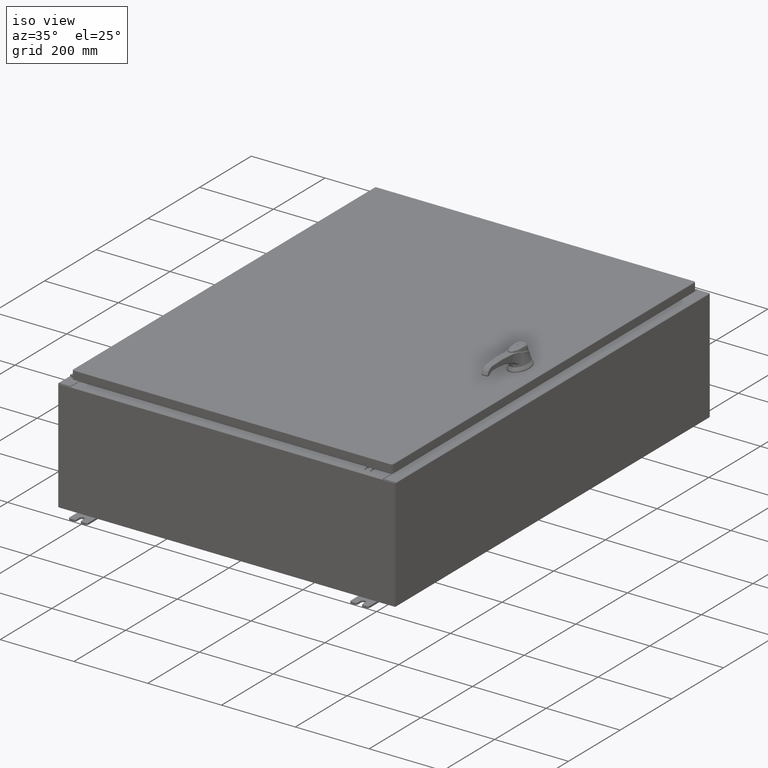
[diagram: clean part render]
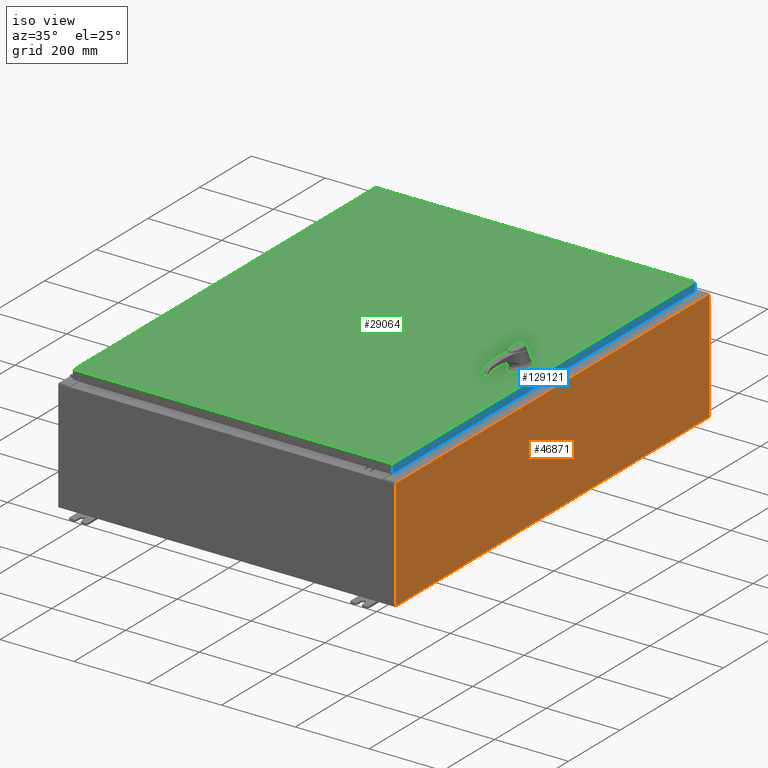
[diagram: same view with three faces highlighted in distinct colors, each labeled with its STEP entity id]
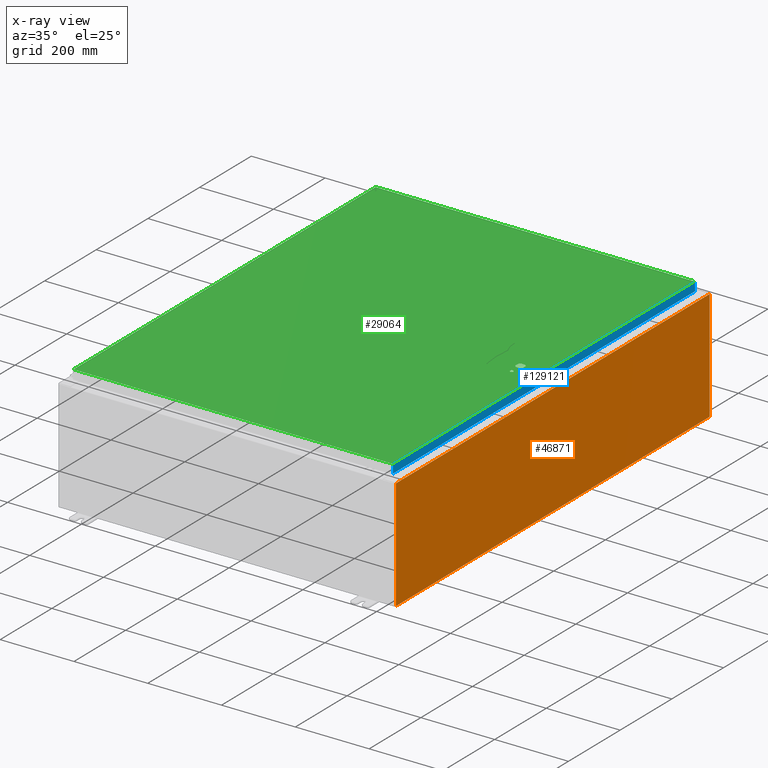
[diagram: x-ray of the same camera — body ghosted, the three highlighted faces saturated]
A machine part, iso view with three faces highlighted in distinct colors.
The next image is the same camera in x-ray (body ghosted, the three faces saturated) — at least one of them is partly hidden behind the body in this view.
Their STEP definitions:

[orange] entity #46871 — the highlighted planar face has unit normal (-1, 0, 0).
#1616 = EDGE_CURVE ( 'NONE', #17032, #116725, #120966, .T. ) ;
#11651 = CARTESIAN_POINT ( 'NONE',  ( 18.00000000000003900, 23.92529999999998900, 11.83760000000000200 ) ) ;
#12940 = CARTESIAN_POINT ( 'NONE',  ( 17.99999999999999600, 23.92529999999998900, -6.293710784286996200E-014 ) ) ;
#17032 = VERTEX_POINT ( 'NONE', #26795 ) ;
#25118 = VERTEX_POINT ( 'NONE', #116695 ) ;
#26795 = CARTESIAN_POINT ( 'NONE',  ( 18.00000000000003900, -23.92529999999998900, 11.83760000000000200 ) ) ;
#28885 = LINE ( 'NONE', #128133, #111673 ) ;
#35739 = ORIENTED_EDGE ( 'NONE', *, *, #40190, .T. ) ;
#40190 = EDGE_CURVE ( 'NONE', #60529, #25118, #54267, .T. ) ;
#43577 = EDGE_CURVE ( 'NONE', #25118, #17032, #126953, .T. ) ;
#46871 = ADVANCED_FACE ( 'NONE', ( #116472 ), #96043, .F. ) ;
#46961 = CARTESIAN_POINT ( 'NONE',  ( 17.99999999999999600, -23.92529999999998900, 0.01299999999999897800 ) ) ;
#46983 = ORIENTED_EDGE ( 'NONE', *, *, #43577, .T. ) ;
#47941 = ORIENTED_EDGE ( 'NONE', *, *, #86748, .F. ) ;
#51321 = CARTESIAN_POINT ( 'NONE',  ( 17.99999999999999600, 23.92529999999998600, 0.01300000000000203200 ) ) ;
#54267 = LINE ( 'NONE', #12940, #57485 ) ;
#54723 = DIRECTION ( 'NONE',  ( -1.000000000000000000, 0.0000000000000000000, 3.482016343714355100E-015 ) ) ;
#57485 = VECTOR ( 'NONE', #116737, 39.37007874015748100 ) ;
#60529 = VERTEX_POINT ( 'NONE', #51321 ) ;
#65984 = DIRECTION ( 'NONE',  ( -1.590339826456887700E-031, -1.000000000000000000, -4.567295697298285000E-017 ) ) ;
#86748 = EDGE_CURVE ( 'NONE', #60529, #116725, #28885, .T. ) ;
#93439 = VECTOR ( 'NONE', #102812, 39.37007874015748100 ) ;
#96043 = PLANE ( 'NONE',  #119093 ) ;
#99313 = VECTOR ( 'NONE', #105013, 39.37007874015748100 ) ;
#100063 = EDGE_LOOP ( 'NONE', ( #46983, #121100, #47941, #35739 ) ) ;
#102812 = DIRECTION ( 'NONE',  ( -3.482016343714355500E-015, 0.0000000000000000000, -1.000000000000000000 ) ) ;
#105013 = DIRECTION ( 'NONE',  ( -0.0000000000000000000, -1.000000000000000000, -0.0000000000000000000 ) ) ;
#111673 = VECTOR ( 'NONE', #65984, 39.37007874015748100 ) ;
#116472 = FACE_OUTER_BOUND ( 'NONE', #100063, .T. ) ;
#116695 = CARTESIAN_POINT ( 'NONE',  ( 18.00000000000003900, 23.92529999999998600, 11.83760000000000200 ) ) ;
#116725 = VERTEX_POINT ( 'NONE', #46961 ) ;
#116737 = DIRECTION ( 'NONE',  ( 3.482016343714355500E-015, 0.0000000000000000000, 1.000000000000000000 ) ) ;
#116870 = CARTESIAN_POINT ( 'NONE',  ( 17.99999999999999600, 0.0000000000000000000, -6.293710784286996200E-014 ) ) ;
#119093 = AXIS2_PLACEMENT_3D ( 'NONE', #116870, #54723, #127322 ) ;
#120966 = LINE ( 'NONE', #123672, #93439 ) ;
#121100 = ORIENTED_EDGE ( 'NONE', *, *, #1616, .T. ) ;
#123672 = CARTESIAN_POINT ( 'NONE',  ( 17.99999999999999600, -23.92529999999998900, -6.293710784286996200E-014 ) ) ;
#126953 = LINE ( 'NONE', #11651, #99313 ) ;
#127322 = DIRECTION ( 'NONE',  ( 3.482016343714355100E-015, 0.0000000000000000000, 1.000000000000000000 ) ) ;
#128133 = CARTESIAN_POINT ( 'NONE',  ( 17.99999999999999600, -23.92529999999998900, 0.01299999999999984700 ) ) ;

[blue] entity #129121 — the highlighted planar face has unit normal (1, 0, 0).
#140 = ORIENTED_EDGE ( 'NONE', *, *, #812, .T. ) ;
#812 = EDGE_CURVE ( 'NONE', #10887, #98666, #20368, .T. ) ;
#5435 = VECTOR ( 'NONE', #29473, 39.37007874015748100 ) ;
#6855 = EDGE_CURVE ( 'NONE', #10887, #113519, #99299, .T. ) ;
#10887 = VERTEX_POINT ( 'NONE', #28990 ) ;
#20368 = LINE ( 'NONE', #87906, #75522 ) ;
#23919 = EDGE_CURVE ( 'NONE', #98666, #79311, #120025, .T. ) ;
#25027 = CARTESIAN_POINT ( 'NONE',  ( 17.07800000000000300, -23.09400000000000100, -0.9376999999999997600 ) ) ;
#28990 = CARTESIAN_POINT ( 'NONE',  ( 17.07800000000000300, 23.00515786437628000, -0.9376999999999997600 ) ) ;
#29473 = DIRECTION ( 'NONE',  ( -2.532419924601866100E-015, -6.982962677686265900E-015, 1.000000000000000000 ) ) ;
#56268 = DIRECTION ( 'NONE',  ( 0.0000000000000000000, -1.000000000000000000, 0.0000000000000000000 ) ) ;
#57563 = PLANE ( 'NONE',  #115372 ) ;
#58018 = CARTESIAN_POINT ( 'NONE',  ( 17.07799999999999900, 0.0000000000000000000, 4.350948112836224800E-014 ) ) ;
#59950 = CARTESIAN_POINT ( 'NONE',  ( 17.07799999999999900, 0.0000000000000000000, -0.08770000000000008300 ) ) ;
#65529 = ORIENTED_EDGE ( 'NONE', *, *, #23919, .T. ) ;
#68429 = DIRECTION ( 'NONE',  ( 2.532419924601866100E-015, 0.0000000000000000000, -1.000000000000000000 ) ) ;
#71700 = VECTOR ( 'NONE', #56268, 39.37007874015748100 ) ;
#75522 = VECTOR ( 'NONE', #120037, 39.37007874015748100 ) ;
#76386 = CARTESIAN_POINT ( 'NONE',  ( 17.07799999999999900, 23.00515786437627200, -0.08770000000000008300 ) ) ;
#79311 = VERTEX_POINT ( 'NONE', #127663 ) ;
#80847 = DIRECTION ( 'NONE',  ( 0.0000000000000000000, -1.000000000000000000, 0.0000000000000000000 ) ) ;
#82962 = EDGE_LOOP ( 'NONE', ( #113690, #130382, #140, #65529 ) ) ;
#87906 = CARTESIAN_POINT ( 'NONE',  ( 17.07799999999999900, 23.00515786437627600, 2.041536398895824600E-013 ) ) ;
#92458 = VECTOR ( 'NONE', #80847, 39.37007874015748100 ) ;
#92611 = EDGE_CURVE ( 'NONE', #113519, #79311, #115784, .T. ) ;
#98666 = VERTEX_POINT ( 'NONE', #76386 ) ;
#99299 = LINE ( 'NONE', #25027, #71700 ) ;
#113519 = VERTEX_POINT ( 'NONE', #133818 ) ;
#113690 = ORIENTED_EDGE ( 'NONE', *, *, #92611, .F. ) ;
#115372 = AXIS2_PLACEMENT_3D ( 'NONE', #58018, #130563, #68429 ) ;
#115784 = LINE ( 'NONE', #133705, #5435 ) ;
#120025 = LINE ( 'NONE', #59950, #92458 ) ;
#120037 = DIRECTION ( 'NONE',  ( -2.532419924601866100E-015, -6.982962677686265900E-015, 1.000000000000000000 ) ) ;
#121695 = FACE_OUTER_BOUND ( 'NONE', #82962, .T. ) ;
#127663 = CARTESIAN_POINT ( 'NONE',  ( 17.07799999999999900, -23.00515786437626900, -0.08770000000000008300 ) ) ;
#129121 = ADVANCED_FACE ( 'NONE', ( #121695 ), #57563, .T. ) ;
#130382 = ORIENTED_EDGE ( 'NONE', *, *, #6855, .F. ) ;
#130563 = DIRECTION ( 'NONE',  ( 1.000000000000000000, 0.0000000000000000000, 2.532419924601866100E-015 ) ) ;
#133705 = CARTESIAN_POINT ( 'NONE',  ( 17.07799999999999900, -23.00515786437626900, -0.07469999999999980800 ) ) ;
#133818 = CARTESIAN_POINT ( 'NONE',  ( 17.07800000000000300, -23.00515786437626200, -0.9376999999999997600 ) ) ;

[green] entity #29064 — the highlighted planar face has unit normal (0, 0, -1).
#1059 = VERTEX_POINT ( 'NONE', #6441 ) ;
#1452 = VERTEX_POINT ( 'NONE', #112198 ) ;
#1599 = ORIENTED_EDGE ( 'NONE', *, *, #79487, .F. ) ;
#3014 = VERTEX_POINT ( 'NONE', #13483 ) ;
#3662 = DIRECTION ( 'NONE',  ( -0.0000000000000000000, 0.0000000000000000000, 1.000000000000000000 ) ) ;
#3948 = EDGE_CURVE ( 'NONE', #100756, #3014, #29806, .T. ) ;
#6441 = CARTESIAN_POINT ( 'NONE',  ( 14.37777262924369000, -0.4029999999999252000, 0.0000000000000000000 ) ) ;
#9037 = CARTESIAN_POINT ( 'NONE',  ( 14.57799999999999900, -1.338000000000000100, 0.0000000000000000000 ) ) ;
#10318 = AXIS2_PLACEMENT_3D ( 'NONE', #65749, #3662, #76243 ) ;
#11972 = EDGE_CURVE ( 'NONE', #15686, #56895, #12584, .T. ) ;
#12584 = LINE ( 'NONE', #23325, #119587 ) ;
#12827 = CARTESIAN_POINT ( 'NONE',  ( 14.57799999999999900, 0.0000000000000000000, 0.0000000000000000000 ) ) ;
#13262 = VECTOR ( 'NONE', #35687, 39.37007874015748100 ) ;
#13483 = CARTESIAN_POINT ( 'NONE',  ( -16.99029999999999800, -23.00630000000000300, 1.946441695485787500E-015 ) ) ;
#13830 = ORIENTED_EDGE ( 'NONE', *, *, #62180, .T. ) ;
#15658 = LINE ( 'NONE', #99883, #122740 ) ;
#15686 = VERTEX_POINT ( 'NONE', #100871 ) ;
#16999 = LINE ( 'NONE', #25412, #120781 ) ;
#17496 = EDGE_CURVE ( 'NONE', #112810, #57061, #48020, .T. ) ;
#19332 = EDGE_CURVE ( 'NONE', #53659, #100756, #16999, .T. ) ;
#19472 = DIRECTION ( 'NONE',  ( 1.000000000000000000, 0.0000000000000000000, 0.0000000000000000000 ) ) ;
#19623 = VECTOR ( 'NONE', #112167, 39.37007874015748100 ) ;
#20201 = ORIENTED_EDGE ( 'NONE', *, *, #17496, .F. ) ;
#22743 = VECTOR ( 'NONE', #45516, 39.37007874015748100 ) ;
#23237 = DIRECTION ( 'NONE',  ( 1.000000000000000000, 0.0000000000000000000, 0.0000000000000000000 ) ) ;
#23325 = CARTESIAN_POINT ( 'NONE',  ( 0.0000000000000000000, 0.4029999999999252000, 0.0000000000000000000 ) ) ;
#23753 = ORIENTED_EDGE ( 'NONE', *, *, #25377, .F. ) ;
#23811 = VERTEX_POINT ( 'NONE', #68560 ) ;
#24110 = FACE_BOUND ( 'NONE', #65411, .T. ) ;
#24943 = VERTEX_POINT ( 'NONE', #88246 ) ;
#25233 = CIRCLE ( 'NONE', #64374, 0.1715000000000011500 ) ;
#25377 = EDGE_CURVE ( 'NONE', #26383, #15686, #84764, .T. ) ;
#25412 = CARTESIAN_POINT ( 'NONE',  ( 16.99029999999999800, 23.00630000000001000, 1.946441695485787500E-015 ) ) ;
#26383 = VERTEX_POINT ( 'NONE', #117297 ) ;
#29064 = ADVANCED_FACE ( 'NONE', ( #24110, #134398, #76047 ), #112938, .F. ) ;
#29806 = LINE ( 'NONE', #71504, #115827 ) ;
#30298 = CARTESIAN_POINT ( 'NONE',  ( 14.98099999999992900, -0.2002273707563079800, 0.0000000000000000000 ) ) ;
#30352 = DIRECTION ( 'NONE',  ( 1.000000000000000000, -0.0000000000000000000, -0.0000000000000000000 ) ) ;
#30406 = DIRECTION ( 'NONE',  ( -1.000000000000000000, 0.0000000000000000000, -0.0000000000000000000 ) ) ;
#31755 = AXIS2_PLACEMENT_3D ( 'NONE', #111184, #48993, #121570 ) ;
#35494 = AXIS2_PLACEMENT_3D ( 'NONE', #12827, #85377, #23237 ) ;
#35687 = DIRECTION ( 'NONE',  ( 0.0000000000000000000, 1.000000000000000000, 0.0000000000000000000 ) ) ;
#36910 = DIRECTION ( 'NONE',  ( -0.0000000000000000000, 0.0000000000000000000, 1.000000000000000000 ) ) ;
#38540 = CARTESIAN_POINT ( 'NONE',  ( 14.77822737075630900, -0.4029999999999252000, 0.0000000000000000000 ) ) ;
#42826 = EDGE_CURVE ( 'NONE', #56895, #23811, #50758, .T. ) ;
#43539 = ORIENTED_EDGE ( 'NONE', *, *, #3948, .T. ) ;
#43923 = LINE ( 'NONE', #101712, #19623 ) ;
#43929 = CARTESIAN_POINT ( 'NONE',  ( 14.57799999999999900, 0.0000000000000000000, 0.0000000000000000000 ) ) ;
#45516 = DIRECTION ( 'NONE',  ( 0.0000000000000000000, -1.000000000000000000, 0.0000000000000000000 ) ) ;
#45772 = EDGE_CURVE ( 'NONE', #23811, #1452, #105474, .T. ) ;
#48020 = CIRCLE ( 'NONE', #63263, 0.4499999999999168000 ) ;
#48763 = LINE ( 'NONE', #71571, #100730 ) ;
#48791 = CARTESIAN_POINT ( 'NONE',  ( -16.99029999999998400, 23.00630000000001000, -1.297627796990525000E-015 ) ) ;
#48993 = DIRECTION ( 'NONE',  ( -0.0000000000000000000, 0.0000000000000000000, 1.000000000000000000 ) ) ;
#50758 = CIRCLE ( 'NONE', #10318, 0.4499999999999168000 ) ;
#52441 = ORIENTED_EDGE ( 'NONE', *, *, #61399, .T. ) ;
#53659 = VERTEX_POINT ( 'NONE', #61350 ) ;
#54349 = DIRECTION ( 'NONE',  ( 1.000000000000000000, 0.0000000000000000000, 0.0000000000000000000 ) ) ;
#56895 = VERTEX_POINT ( 'NONE', #120510 ) ;
#57061 = VERTEX_POINT ( 'NONE', #30298 ) ;
#57077 = AXIS2_PLACEMENT_3D ( 'NONE', #133727, #92501, #30406 ) ;
#58577 = DIRECTION ( 'NONE',  ( 1.000000000000000000, 0.0000000000000000000, 0.0000000000000000000 ) ) ;
#60379 = VERTEX_POINT ( 'NONE', #69940 ) ;
#61350 = CARTESIAN_POINT ( 'NONE',  ( 16.99029999999999800, 23.00630000000001000, 1.946441695485787500E-015 ) ) ;
#61399 = EDGE_CURVE ( 'NONE', #24943, #53659, #71611, .T. ) ;
#62180 = EDGE_CURVE ( 'NONE', #26383, #57061, #43923, .T. ) ;
#63263 = AXIS2_PLACEMENT_3D ( 'NONE', #43929, #116503, #54349 ) ;
#64374 = AXIS2_PLACEMENT_3D ( 'NONE', #99033, #36910, #109478 ) ;
#65411 = EDGE_LOOP ( 'NONE', ( #1599, #66100 ) ) ;
#65749 = CARTESIAN_POINT ( 'NONE',  ( 14.57799999999999900, 0.0000000000000000000, 0.0000000000000000000 ) ) ;
#66043 = ORIENTED_EDGE ( 'NONE', *, *, #19332, .T. ) ;
#66095 = ORIENTED_EDGE ( 'NONE', *, *, #127034, .T. ) ;
#66100 = ORIENTED_EDGE ( 'NONE', *, *, #117933, .F. ) ;
#68560 = CARTESIAN_POINT ( 'NONE',  ( 14.17500000000007400, 0.2002273707563079800, 0.0000000000000000000 ) ) ;
#69940 = CARTESIAN_POINT ( 'NONE',  ( 14.40649999999999800, -1.338000000000000100, 0.0000000000000000000 ) ) ;
#70572 = EDGE_LOOP ( 'NONE', ( #13830, #20201, #89228, #82619, #118909, #74037, #118174, #23753 ) ) ;
#71504 = CARTESIAN_POINT ( 'NONE',  ( -16.99029999999998400, 23.00630000000001000, -1.297627796990525000E-015 ) ) ;
#71571 = CARTESIAN_POINT ( 'NONE',  ( -16.99029999999999800, -23.00630000000000300, 1.946441695485787500E-015 ) ) ;
#71611 = LINE ( 'NONE', #87392, #13262 ) ;
#74037 = ORIENTED_EDGE ( 'NONE', *, *, #42826, .F. ) ;
#74555 = EDGE_CURVE ( 'NONE', #1059, #112810, #15658, .T. ) ;
#76047 = FACE_BOUND ( 'NONE', #70572, .T. ) ;
#76243 = DIRECTION ( 'NONE',  ( 1.000000000000000000, 0.0000000000000000000, 0.0000000000000000000 ) ) ;
#79171 = CIRCLE ( 'NONE', #125136, 0.1715000000000011500 ) ;
#79487 = EDGE_CURVE ( 'NONE', #98317, #60379, #25233, .T. ) ;
#80414 = EDGE_LOOP ( 'NONE', ( #66095, #52441, #66043, #43539 ) ) ;
#81147 = CARTESIAN_POINT ( 'NONE',  ( 14.74950000000000100, -1.338000000000000100, 0.0000000000000000000 ) ) ;
#81588 = DIRECTION ( 'NONE',  ( -0.0000000000000000000, 0.0000000000000000000, 1.000000000000000000 ) ) ;
#82619 = ORIENTED_EDGE ( 'NONE', *, *, #130349, .F. ) ;
#84764 = CIRCLE ( 'NONE', #31755, 0.4499999999999168000 ) ;
#85377 = DIRECTION ( 'NONE',  ( -0.0000000000000000000, 0.0000000000000000000, 1.000000000000000000 ) ) ;
#87392 = CARTESIAN_POINT ( 'NONE',  ( 16.99029999999999800, -23.00630000000000300, -2.048885995248197400E-016 ) ) ;
#87548 = DIRECTION ( 'NONE',  ( -1.000000000000000000, -0.0000000000000000000, -0.0000000000000000000 ) ) ;
#88246 = CARTESIAN_POINT ( 'NONE',  ( 16.99029999999999800, -23.00630000000000300, -2.048885995248197400E-016 ) ) ;
#89228 = ORIENTED_EDGE ( 'NONE', *, *, #74555, .F. ) ;
#92288 = CIRCLE ( 'NONE', #35494, 0.4499999999999168000 ) ;
#92501 = DIRECTION ( 'NONE',  ( 0.0000000000000000000, 0.0000000000000000000, -1.000000000000000000 ) ) ;
#92857 = DIRECTION ( 'NONE',  ( 0.0000000000000000000, -1.000000000000000000, 0.0000000000000000000 ) ) ;
#98317 = VERTEX_POINT ( 'NONE', #81147 ) ;
#99033 = CARTESIAN_POINT ( 'NONE',  ( 14.57799999999999900, -1.338000000000000100, 0.0000000000000000000 ) ) ;
#99883 = CARTESIAN_POINT ( 'NONE',  ( 0.0000000000000000000, -0.4029999999999252000, 0.0000000000000000000 ) ) ;
#100730 = VECTOR ( 'NONE', #30352, 39.37007874015748100 ) ;
#100756 = VERTEX_POINT ( 'NONE', #48791 ) ;
#100871 = CARTESIAN_POINT ( 'NONE',  ( 14.77822737075630900, 0.4029999999999252000, 0.0000000000000000000 ) ) ;
#101712 = CARTESIAN_POINT ( 'NONE',  ( 14.98099999999992700, 8.175868191945441800E-014, 0.0000000000000000000 ) ) ;
#105474 = LINE ( 'NONE', #128501, #22743 ) ;
#109478 = DIRECTION ( 'NONE',  ( 1.000000000000000000, 0.0000000000000000000, 0.0000000000000000000 ) ) ;
#111184 = CARTESIAN_POINT ( 'NONE',  ( 14.57799999999999900, 0.0000000000000000000, 0.0000000000000000000 ) ) ;
#112167 = DIRECTION ( 'NONE',  ( 5.457491617345625800E-015, -1.000000000000000000, 0.0000000000000000000 ) ) ;
#112198 = CARTESIAN_POINT ( 'NONE',  ( 14.17500000000007400, -0.2002273707563079800, 0.0000000000000000000 ) ) ;
#112810 = VERTEX_POINT ( 'NONE', #38540 ) ;
#112938 = PLANE ( 'NONE',  #57077 ) ;
#115827 = VECTOR ( 'NONE', #92857, 39.37007874015748100 ) ;
#116503 = DIRECTION ( 'NONE',  ( -0.0000000000000000000, 0.0000000000000000000, 1.000000000000000000 ) ) ;
#116714 = DIRECTION ( 'NONE',  ( -1.000000000000000000, 0.0000000000000000000, 0.0000000000000000000 ) ) ;
#117297 = CARTESIAN_POINT ( 'NONE',  ( 14.98099999999992700, 0.2002273707563075900, 0.0000000000000000000 ) ) ;
#117933 = EDGE_CURVE ( 'NONE', #60379, #98317, #79171, .T. ) ;
#118174 = ORIENTED_EDGE ( 'NONE', *, *, #11972, .F. ) ;
#118909 = ORIENTED_EDGE ( 'NONE', *, *, #45772, .F. ) ;
#119587 = VECTOR ( 'NONE', #116714, 39.37007874015748100 ) ;
#120510 = CARTESIAN_POINT ( 'NONE',  ( 14.37777262924369000, 0.4029999999999252000, 0.0000000000000000000 ) ) ;
#120781 = VECTOR ( 'NONE', #87548, 39.37007874015748100 ) ;
#121570 = DIRECTION ( 'NONE',  ( 1.000000000000000000, 0.0000000000000000000, 0.0000000000000000000 ) ) ;
#122740 = VECTOR ( 'NONE', #58577, 39.37007874015748100 ) ;
#125136 = AXIS2_PLACEMENT_3D ( 'NONE', #9037, #81588, #19472 ) ;
#127034 = EDGE_CURVE ( 'NONE', #3014, #24943, #48763, .T. ) ;
#128501 = CARTESIAN_POINT ( 'NONE',  ( 14.17500000000007400, 0.0000000000000000000, 0.0000000000000000000 ) ) ;
#130349 = EDGE_CURVE ( 'NONE', #1452, #1059, #92288, .T. ) ;
#133727 = CARTESIAN_POINT ( 'NONE',  ( 0.0000000000000000000, 0.0000000000000000000, 0.0000000000000000000 ) ) ;
#134398 = FACE_OUTER_BOUND ( 'NONE', #80414, .T. ) ;